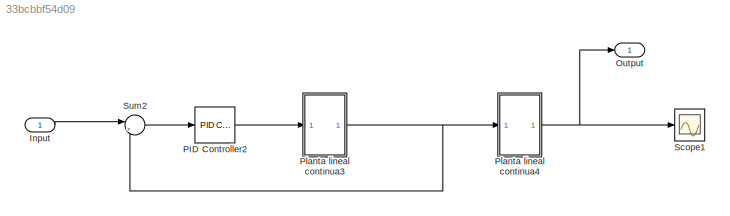
MODEL slx_33bcbbf54d09
KIND model
CONFIG AbsTol = auto
CONFIG EnableMultiTasking = off
CONFIG FixedStep = auto
CONFIG MaxStep = auto
CONFIG MinStep = auto
CONFIG RelTol = 1e-3
CONFIG SampleTimeConstraint = Unconstrained
CONFIG Solver = VariableStepAuto
CONFIG SolverName = VariableStepAuto
CONFIG StartTime = 0.0
CONFIG StopTime = 20
BLOCK [Inport] Input
  IconDisplay = Port number
BLOCK [Outport] Output
  IconDisplay = Port number
BLOCK [Reference] PID Controller2  REF=simulink/Continuous/PID Controller
  Ports = [1, 1]
  SourceBlock = simulink/Continuous/PID Controller
  SourceProductBaseCode = SL
  SourceProductName = Simulink
  SourceType = PID 1dof
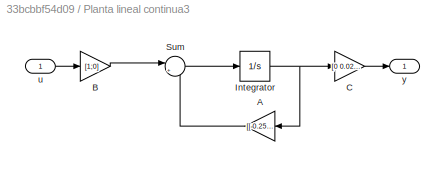
BLOCK [SubSystem] Planta lineal continua3
  Ports = [1, 1]
  RequestExecContextInheritance = off
BLOCK [Gain] Planta lineal continua3/A
  Gain = [[-0.25,-0.025];[1 0]]
  Multiplication = Matrix(K*u) (u vector)
  OutDataTypeStr = Inherit: Inherit via internal rule
  ParamDataTypeStr = Inherit: Inherit via internal rule
  SaturateOnIntegerOverflow = off
BLOCK [Gain] Planta lineal continua3/B
  Gain = [1;0]
  Multiplication = Matrix(K*u) (u vector)
  OutDataTypeStr = Inherit: Inherit via internal rule
  ParamDataTypeStr = Inherit: Inherit via internal rule
  SaturateOnIntegerOverflow = off
BLOCK [Gain] Planta lineal continua3/C
  Gain = [0 0.025]
  Multiplication = Matrix(K*u) (u vector)
  OutDataTypeStr = Inherit: Inherit via internal rule
  ParamDataTypeStr = Inherit: Inherit via internal rule
  SaturateOnIntegerOverflow = off
BLOCK [Integrator] Planta lineal continua3/Integrator
  Ports = [1, 1]
BLOCK [Sum] Planta lineal continua3/Sum
  IconShape = round
  InputSameDT = off
  Inputs = |++
  OutDataTypeStr = Inherit: Inherit via internal rule
  Ports = [2, 1]
  SaturateOnIntegerOverflow = off
BLOCK [Inport] Planta lineal continua3/u
  IconDisplay = Port number
BLOCK [Outport] Planta lineal continua3/y
  IconDisplay = Port number
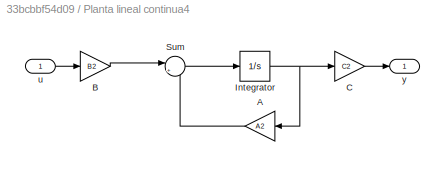
BLOCK [SubSystem] Planta lineal continua4
  Ports = [1, 1]
  RequestExecContextInheritance = off
BLOCK [Gain] Planta lineal continua4/A
  Gain = A2
  Multiplication = Matrix(K*u) (u vector)
  OutDataTypeStr = Inherit: Inherit via internal rule
  ParamDataTypeStr = Inherit: Inherit via internal rule
  SaturateOnIntegerOverflow = off
BLOCK [Gain] Planta lineal continua4/B
  Gain = B2
  Multiplication = Matrix(K*u) (u vector)
  OutDataTypeStr = Inherit: Inherit via internal rule
  ParamDataTypeStr = Inherit: Inherit via internal rule
  SaturateOnIntegerOverflow = off
BLOCK [Gain] Planta lineal continua4/C
  Gain = C2
  Multiplication = Matrix(K*u) (u vector)
  OutDataTypeStr = Inherit: Inherit via internal rule
  ParamDataTypeStr = Inherit: Inherit via internal rule
  SaturateOnIntegerOverflow = off
BLOCK [Integrator] Planta lineal continua4/Integrator
  Ports = [1, 1]
BLOCK [Sum] Planta lineal continua4/Sum
  IconShape = round
  InputSameDT = off
  Inputs = |++
  OutDataTypeStr = Inherit: Inherit via internal rule
  Ports = [2, 1]
  SaturateOnIntegerOverflow = off
BLOCK [Inport] Planta lineal continua4/u
  IconDisplay = Port number
BLOCK [Outport] Planta lineal continua4/y
  IconDisplay = Port number
BLOCK [Scope] Scope1
  Floating = off
  NumInputPorts = 1
  Ports = [1]
  ScopeSpecificationString = Simulink.scopes.TimeScopeBlockCfg('CurrentConfiguration', extmgr.ConfigurationSet(extmgr.Configuration('Core','General UI',true),extmgr.Configuration('Core','Source UI',true),extmgr.Configuration('Sources','WiredSimulink',true,'DataLoggingVariableName','ScopeData1'),extmgr.Configuration('Visuals','Time Domain',true,'SerializedDisplays',{struct('MinYLimReal','-0.00016','MaxYLimReal','0.00146','YLab...<+1382ch>
BLOCK [Sum] Sum2
  IconShape = round
  InputSameDT = off
  Inputs = |+-
  OutDataTypeStr = Inherit: Inherit via internal rule
  Ports = [2, 1]
  SaturateOnIntegerOverflow = off
LINE Input:1 -> Sum2:1
LINE PID Controller2:1 -> Planta lineal continua3:1
LINE Planta lineal continua3/A:1 -> Planta lineal continua3/Sum:2
LINE Planta lineal continua3/B:1 -> Planta lineal continua3/Sum:1
LINE Planta lineal continua3/C:1 -> Planta lineal continua3/y:1
NET Planta lineal continua3/Integrator:1 -> Planta lineal continua3/A:1, Planta lineal continua3/C:1
LINE Planta lineal continua3/Sum:1 -> Planta lineal continua3/Integrator:1
LINE Planta lineal continua3/u:1 -> Planta lineal continua3/B:1
NET Planta lineal continua3:1 -> Planta lineal continua4:1, Sum2:2
LINE Planta lineal continua4/A:1 -> Planta lineal continua4/Sum:2
LINE Planta lineal continua4/B:1 -> Planta lineal continua4/Sum:1
LINE Planta lineal continua4/C:1 -> Planta lineal continua4/y:1
NET Planta lineal continua4/Integrator:1 -> Planta lineal continua4/A:1, Planta lineal continua4/C:1
LINE Planta lineal continua4/Sum:1 -> Planta lineal continua4/Integrator:1
LINE Planta lineal continua4/u:1 -> Planta lineal continua4/B:1
NET Planta lineal continua4:1 -> Output:1, Scope1:1
LINE Sum2:1 -> PID Controller2:1
note: NET lines group one-source signal fan-out (src -> all destinations, sorted); 1:1 wires keep LINE
